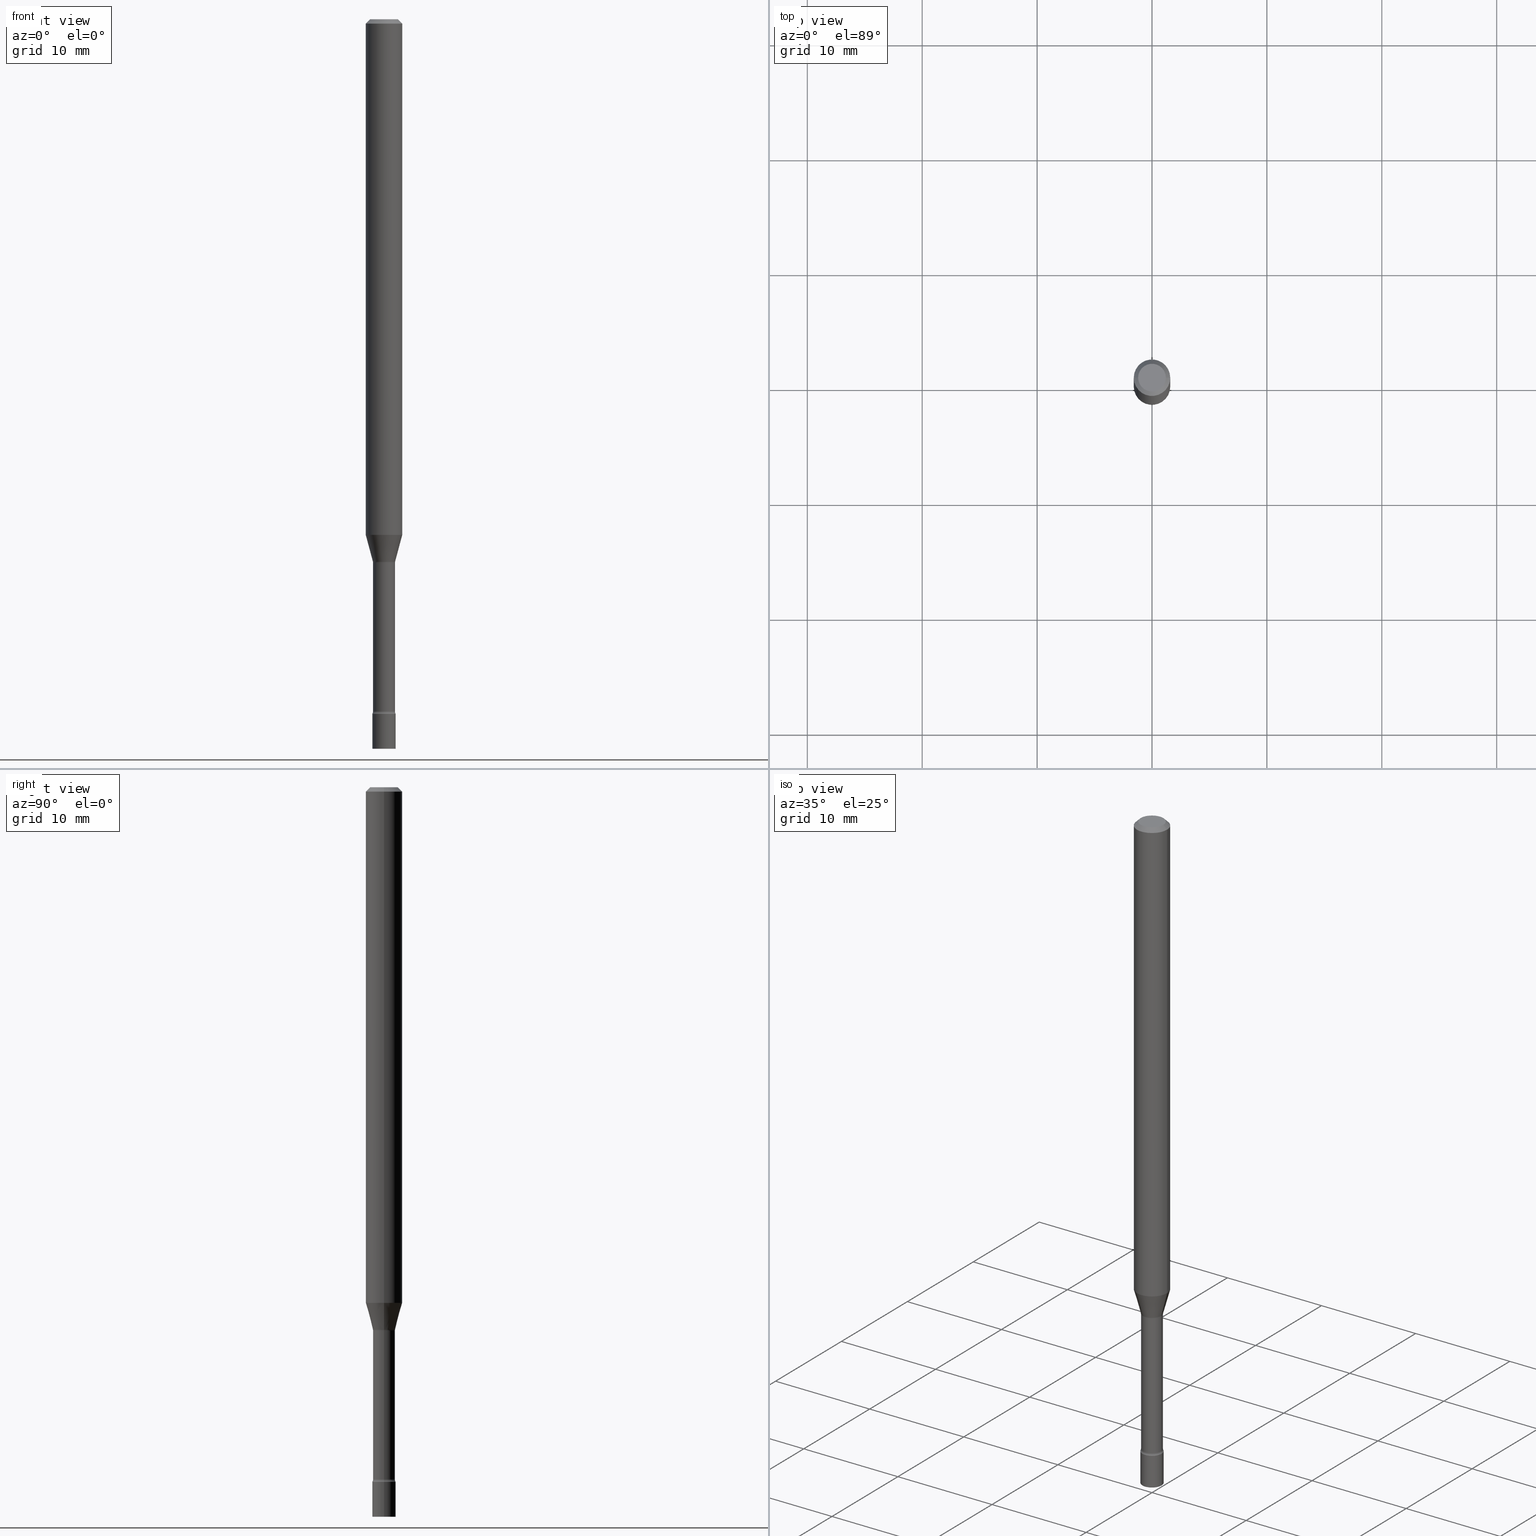
[diagram: canonical four-view strip — front | top / right | iso, engineering-drawing reading convention]
A machine part, canonical four-view strip (front | top / right | iso — engineering-drawing reading convention). The complete STEP part file that produces these views, byte-faithful:
ISO-10303-21;
HEADER;
FILE_DESCRIPTION (( 'STEP AP203' ),
    '1' );
FILE_NAME ('09727.STEP',
    '2024-03-09T01:20:05',
    ( '' ),
    ( '' ),
    'SwSTEP 2.0',
    'SolidWorks 2023',
    '' );
FILE_SCHEMA (( 'CONFIG_CONTROL_DESIGN' ));
ENDSEC;

DATA;
#1 = ADVANCED_FACE ( 'NONE', ( #38 ), #383, .F. ) ;
#2 = PERSON_AND_ORGANIZATION ( #511, #124 ) ;
#3 = EDGE_CURVE ( 'NONE', #232, #300, #247, .T. ) ;
#4 =( NAMED_UNIT ( * ) SI_UNIT ( $, .STERADIAN. ) SOLID_ANGLE_UNIT ( ) );
#5 = AXIS2_PLACEMENT_3D ( 'NONE', #398, #98, #475 ) ;
#6 = AXIS2_PLACEMENT_3D ( 'NONE', #158, #317, #481 ) ;
#7 = EDGE_LOOP ( 'NONE', ( #444, #241, #348, #139 ) ) ;
#8 = CALENDAR_DATE ( 2024, 8, 3 ) ;
#9 = CARTESIAN_POINT ( 'NONE',  ( -0.03811111260566397985, -6.216699553697740830E-15, -1.858092501787273143 ) ) ;
#10 = DIRECTION ( 'NONE',  ( 2.438088387897960049E-29, -3.491481338843145188E-15, -1.000000000000000000 ) ) ;
#11 = PRODUCT_DEFINITION ( 'UNKNOWN', '', #251, #479 ) ;
#12 = PERSON_AND_ORGANIZATION ( #511, #124 ) ;
#13 = CARTESIAN_POINT ( 'NONE',  ( 3.668203209277712094E-31, -5.237222008264728876E-17, -0.01500000000000003067 ) ) ;
#14 = AXIS2_PLACEMENT_3D ( 'NONE', #272, #166, #434 ) ;
#15 = ORIENTED_EDGE ( 'NONE', *, *, #486, .F. ) ;
#16 = APPROVAL_ROLE ( '' ) ;
#17 = CARTESIAN_POINT ( 'NONE',  ( 0.06250000000000000000, -6.606133852422636036E-15, -1.767071934891535134 ) ) ;
#18 = EDGE_LOOP ( 'NONE', ( #503, #122, #153, #513 ) ) ;
#19 = CYLINDRICAL_SURFACE ( 'NONE', #294, 0.06250000000000000000 ) ;
#20 = ORIENTED_EDGE ( 'NONE', *, *, #65, .F. ) ;
#21 = DIRECTION ( 'NONE',  ( 1.000000000000000000, -6.982962677686259611E-15, 0.000000000000000000 ) ) ;
#22 = AXIS2_PLACEMENT_3D ( 'NONE', #518, #249, #93 ) ;
#23 = AXIS2_PLACEMENT_3D ( 'NONE', #474, #389, #235 ) ;
#24 = ORIENTED_EDGE ( 'NONE', *, *, #157, .T. ) ;
#25 = CARTESIAN_POINT ( 'NONE',  ( 2.793185071075088075E-16, 0.03999999999999169498, -2.380000000000000782 ) ) ;
#26 = ORIENTED_EDGE ( 'NONE', *, *, #245, .F. ) ;
#27 = CARTESIAN_POINT ( 'NONE',  ( 3.668203209277712094E-31, -5.237222008264728876E-17, -0.01500000000000003067 ) ) ;
#28 = EDGE_CURVE ( 'NONE', #232, #151, #41, .T. ) ;
#29 = ORIENTED_EDGE ( 'NONE', *, *, #168, .F. ) ;
#30 = DIRECTION ( 'NONE',  ( 1.000000000000000000, -6.982962677686261977E-15, 0.000000000000000000 ) ) ;
#31 = ORIENTED_EDGE ( 'NONE', *, *, #28, .F. ) ;
#32 = AXIS2_PLACEMENT_3D ( 'NONE', #467, #111, #420 ) ;
#33 = CIRCLE ( 'NONE', #97, 0.06250000000000000000 ) ;
#34 = DIRECTION ( 'NONE',  ( 1.000000000000000000, -6.982962677686265922E-15, 4.876176775795935793E-29 ) ) ;
#35 = VERTEX_POINT ( 'NONE', #296 ) ;
#36 = ADVANCED_FACE ( 'NONE', ( #408 ), #311, .F. ) ;
#37 = PLANE ( 'NONE',  #492 ) ;
#38 = FACE_OUTER_BOUND ( 'NONE', #147, .T. ) ;
#39 = CARTESIAN_POINT ( 'NONE',  ( 4.543907252127276431E-29, -6.487495295834638371E-15, -1.858092501787273143 ) ) ;
#40 = VECTOR ( 'NONE', #480, 39.37007874015748143 ) ;
#41 = CIRCLE ( 'NONE', #90, 0.04000000000000000083 ) ;
#42 = LENGTH_MEASURE_WITH_UNIT ( LENGTH_MEASURE( 0.02539999999999999897 ), #212 );
#43 = MECHANICAL_CONTEXT ( 'NONE', #325, 'mechanical' ) ;
#44 = CALENDAR_DATE ( 2024, 8, 3 ) ;
#45 = DIRECTION ( 'NONE',  ( 1.000000000000000000, -6.982962677686261977E-15, 0.000000000000000000 ) ) ;
#46 = ADVANCED_BREP_SHAPE_REPRESENTATION ( '09727', ( #303, #289, #301 ), #244 ) ;
#47 = ADVANCED_FACE ( 'NONE', ( #404 ), #403, .T. ) ;
#48 = APPROVAL_ROLE ( '' ) ;
#49 = AXIS2_PLACEMENT_3D ( 'NONE', #302, #462, #270 ) ;
#50 = CIRCLE ( 'NONE', #6, 0.03760000000000011944 ) ;
#51 = CARTESIAN_POINT ( 'NONE',  ( 2.793185071075117657E-16, 0.03999999999999127864, -2.500000000000000000 ) ) ;
#52 = CC_DESIGN_PERSON_AND_ORGANIZATION_ASSIGNMENT ( #12, #225, ( #251 ) ) ;
#53 = DIRECTION ( 'NONE',  ( 1.000000000000000000, -6.982962677686265922E-15, 4.876176775795935793E-29 ) ) ;
#54 = EDGE_CURVE ( 'NONE', #468, #110, #430, .T. ) ;
#55 = ORIENTED_EDGE ( 'NONE', *, *, #94, .F. ) ;
#56 = CALENDAR_DATE ( 2024, 8, 3 ) ;
#57 = DIRECTION ( 'NONE',  ( -2.445468806185136597E-29, 3.491481338843145583E-15, 1.000000000000000000 ) ) ;
#58 = ORIENTED_EDGE ( 'NONE', *, *, #28, .T. ) ;
#59 = CLOSED_SHELL ( 'NONE', ( #1, #149, #463, #177, #318, #128, #62, #283, #221, #304, #293, #36, #326, #161 ) ) ;
#60 = CARTESIAN_POINT ( 'NONE',  ( 4.553401260645949734E-29, -6.501050223826328957E-15, -1.861974787463811065 ) ) ;
#61 = SECURITY_CLASSIFICATION ( '', '', #295 ) ;
#62 = ADVANCED_FACE ( 'NONE', ( #433 ), #439, .T. ) ;
#63 = ORIENTED_EDGE ( 'NONE', *, *, #375, .T. ) ;
#64 = CARTESIAN_POINT ( 'NONE',  ( -0.05260000000000002174, -7.907563653152925167E-15, -2.371861204020250469 ) ) ;
#65 = EDGE_CURVE ( 'NONE', #507, #103, #208, .T. ) ;
#66 = PRODUCT ( '09727', '09727', '', ( #43 ) ) ;
#67 = DIRECTION ( 'NONE',  ( -2.445468806185136597E-29, 3.491481338843145583E-15, 1.000000000000000000 ) ) ;
#68 = ORIENTED_EDGE ( 'NONE', *, *, #392, .T. ) ;
#69 = APPROVAL_DATE_TIME ( #95, #334 ) ;
#70 = PLANE ( 'NONE',  #477 ) ;
#71 = CIRCLE ( 'NONE', #137, 0.01499999999999990750 ) ;
#72 = CIRCLE ( 'NONE', #206, 0.04000000000000000083 ) ;
#73 = ORIENTED_EDGE ( 'NONE', *, *, #339, .F. ) ;
#74 = FACE_OUTER_BOUND ( 'NONE', #250, .T. ) ;
#75 = PRODUCT_RELATED_PRODUCT_CATEGORY ( 'detail', '', ( #66 ) ) ;
#76 = VERTEX_POINT ( 'NONE', #203 ) ;
#77 = DIRECTION ( 'NONE',  ( -2.438088387897960049E-29, 3.491481338843145188E-15, 1.000000000000000000 ) ) ;
#78 = ORIENTED_EDGE ( 'NONE', *, *, #263, .T. ) ;
#79 = CYLINDRICAL_SURFACE ( 'NONE', #106, 0.06250000000000000000 ) ;
#80 = ADVANCED_FACE ( 'NONE', ( #362 ), #253, .T. ) ;
#81 = ORIENTED_EDGE ( 'NONE', *, *, #3, .T. ) ;
#82 = CLOSED_SHELL ( 'NONE', ( #469, #341, #80, #47 ) ) ;
#83 = EDGE_CURVE ( 'NONE', #234, #305, #164, .T. ) ;
#84 = AXIS2_PLACEMENT_3D ( 'NONE', #125, #116, #280 ) ;
#85 = DIRECTION ( 'NONE',  ( 1.000000000000000000, -6.982962677686265922E-15, 4.876176775795935793E-29 ) ) ;
#86 = CARTESIAN_POINT ( 'NONE',  ( 4.543907252127276431E-29, -6.487495295834638371E-15, -1.858092501787273143 ) ) ;
#87 = CARTESIAN_POINT ( 'NONE',  ( 5.820215758720626311E-29, -8.309725586446688309E-15, -2.380000000000000338 ) ) ;
#88 = DIRECTION ( 'NONE',  ( 1.000000000000000000, -6.982962677686256455E-15, 4.883557194083108977E-29 ) ) ;
#89 = DIRECTION ( 'NONE',  ( 0.000000000000000000, 0.000000000000000000, 1.000000000000000000 ) ) ;
#90 = AXIS2_PLACEMENT_3D ( 'NONE', #335, #213, #201 ) ;
#91 = APPROVAL_ROLE ( '' ) ;
#92 = PERSON_AND_ORGANIZATION ( #511, #124 ) ;
#93 = DIRECTION ( 'NONE',  ( 1.000000000000000000, -6.982962677686265922E-15, 4.876176775795935793E-29 ) ) ;
#94 = EDGE_CURVE ( 'NONE', #396, #273, #323, .T. ) ;
#95 = DATE_AND_TIME ( #8, #377 ) ;
#96 = AXIS2_PLACEMENT_3D ( 'NONE', #448, #223, #493 ) ;
#97 = AXIS2_PLACEMENT_3D ( 'NONE', #27, #399, #424 ) ;
#98 = DIRECTION ( 'NONE',  ( -2.445468806185136597E-29, 3.491481338843145583E-15, 1.000000000000000000 ) ) ;
#99 = DIMENSIONAL_EXPONENTS ( 1.000000000000000000, 0.000000000000000000, 0.000000000000000000, 0.000000000000000000, 0.000000000000000000, 0.000000000000000000, 0.000000000000000000 ) ;
#100 = DATE_TIME_ROLE ( 'classification_date' ) ;
#101 = DIRECTION ( 'NONE',  ( -1.000000000000000000, 6.982962677686265922E-15, -4.876176775795935793E-29 ) ) ;
#102 = CARTESIAN_POINT ( 'NONE',  ( -0.04000000000000000083, -8.234997372473236299E-15, -2.500000000000000000 ) ) ;
#103 = VERTEX_POINT ( 'NONE', #138 ) ;
#104 = COORDINATED_UNIVERSAL_TIME_OFFSET ( 5, 0, .BEHIND. ) ;
#105 = DIRECTION ( 'NONE',  ( -2.445468806185136877E-29, 3.491481338843145188E-15, 1.000000000000000000 ) ) ;
#106 = AXIS2_PLACEMENT_3D ( 'NONE', #516, #470, #520 ) ;
#107 = DIRECTION ( 'NONE',  ( -1.000000000000000000, 7.105427357600969515E-15, 0.000000000000000000 ) ) ;
#108 = ORIENTED_EDGE ( 'NONE', *, *, #436, .T. ) ;
#109 = DIRECTION ( 'NONE',  ( 1.000000000000000000, -6.982962677686266711E-15, 4.876176775795935793E-29 ) ) ;
#110 = VERTEX_POINT ( 'NONE', #485 ) ;
#111 = DIRECTION ( 'NONE',  ( 2.445468806185136597E-29, -3.491481338843145583E-15, -1.000000000000000000 ) ) ;
#112 = CIRCLE ( 'NONE', #422, 0.06250000000000000000 ) ;
#113 = TOROIDAL_SURFACE ( 'NONE', #189, 0.05260000000000002174, 0.01499999999999990404 ) ;
#114 = AXIS2_PLACEMENT_3D ( 'NONE', #441, #489, #53 ) ;
#115 = ORIENTED_EDGE ( 'NONE', *, *, #426, .T. ) ;
#116 = DIRECTION ( 'NONE',  ( -2.445468806185136597E-29, 3.491481338843145583E-15, 1.000000000000000000 ) ) ;
#117 = ORIENTED_EDGE ( 'NONE', *, *, #245, .T. ) ;
#118 = FACE_OUTER_BOUND ( 'NONE', #505, .T. ) ;
#119 = VERTEX_POINT ( 'NONE', #410 ) ;
#120 = FACE_OUTER_BOUND ( 'NONE', #159, .T. ) ;
#121 = EDGE_CURVE ( 'NONE', #500, #234, #401, .T. ) ;
#122 = ORIENTED_EDGE ( 'NONE', *, *, #54, .T. ) ;
#123 = CIRCLE ( 'NONE', #205, 0.04749999999999999362 ) ;
#124 = ORGANIZATION ( 'UNSPECIFIED', 'UNSPECIFIED', '' ) ;
#125 = CARTESIAN_POINT ( 'NONE',  ( 0.000000000000000000, 0.000000000000000000, 0.000000000000000000 ) ) ;
#126 = DIRECTION ( 'NONE',  ( -2.445468806185136597E-29, 3.491481338843145583E-15, 1.000000000000000000 ) ) ;
#127 = CARTESIAN_POINT ( 'NONE',  ( 0.06250000000000000000, -4.364351673553916694E-16, 3.047610484872459871E-30 ) ) ;
#128 = ADVANCED_FACE ( 'NONE', ( #173 ), #498, .T. ) ;
#129 = CARTESIAN_POINT ( 'NONE',  ( 4.543907252127276431E-29, -6.487495295834638371E-15, -1.858092501787273143 ) ) ;
#130 = AXIS2_PLACEMENT_3D ( 'NONE', #163, #357, #324 ) ;
#131 =( NAMED_UNIT ( * ) PLANE_ANGLE_UNIT ( ) SI_UNIT ( $, .RADIAN. ) );
#132 = PERSON_AND_ORGANIZATION_ROLE ( 'creator' ) ;
#133 = CARTESIAN_POINT ( 'NONE',  ( 0.05260000000000000092, -6.868354060672625930E-15, -1.861974787463811065 ) ) ;
#134 = CARTESIAN_POINT ( 'NONE',  ( 0.03760000000000006393, -2.625593966810040961E-16, 1.833442467699274916E-30 ) ) ;
#135 = DIRECTION ( 'NONE',  ( 1.000000000000000000, -6.982962677686261977E-15, 0.000000000000000000 ) ) ;
#136 = APPLICATION_CONTEXT ( 'configuration controlled 3d designs of mechanical parts and assemblies' ) ;
#137 = AXIS2_PLACEMENT_3D ( 'NONE', #64, #220, #107 ) ;
#138 = CARTESIAN_POINT ( 'NONE',  ( 0.03760000000000000842, -6.763609620507332560E-15, -1.861974787463811065 ) ) ;
#139 = ORIENTED_EDGE ( 'NONE', *, *, #442, .T. ) ;
#140 = FACE_OUTER_BOUND ( 'NONE', #181, .T. ) ;
#141 = ORIENTED_EDGE ( 'NONE', *, *, #450, .T. ) ;
#142 = FACE_OUTER_BOUND ( 'NONE', #288, .T. ) ;
#143 = EDGE_LOOP ( 'NONE', ( #455, #31 ) ) ;
#144 = CIRCLE ( 'NONE', #355, 0.06250000000000000000 ) ;
#145 = DIRECTION ( 'NONE',  ( -2.445468806185136597E-29, 3.491481338843145583E-15, 1.000000000000000000 ) ) ;
#146 = AXIS2_PLACEMENT_3D ( 'NONE', #313, #395, #160 ) ;
#147 = EDGE_LOOP ( 'NONE', ( #258, #390, #219, #20 ) ) ;
#148 = DIRECTION ( 'NONE',  ( -2.445468806185136597E-29, 3.491481338843145583E-15, 1.000000000000000000 ) ) ;
#149 = ADVANCED_FACE ( 'NONE', ( #290 ), #319, .T. ) ;
#150 = CC_DESIGN_PERSON_AND_ORGANIZATION_ASSIGNMENT ( #2, #328, ( #66 ) ) ;
#151 = VERTEX_POINT ( 'NONE', #152 ) ;
#152 = CARTESIAN_POINT ( 'NONE',  ( 0.04000000000000000083, -9.008021854215314980E-15, -2.500000000000000000 ) ) ;
#153 = ORIENTED_EDGE ( 'NONE', *, *, #496, .T. ) ;
#154 = LINE ( 'NONE', #127, #365 ) ;
#155 = AXIS2_PLACEMENT_3D ( 'NONE', #129, #330, #372 ) ;
#156 = ORIENTED_EDGE ( 'NONE', *, *, #263, .F. ) ;
#157 = EDGE_CURVE ( 'NONE', #103, #446, #368, .T. ) ;
#158 = CARTESIAN_POINT ( 'NONE',  ( 5.800312587032242765E-29, -8.281309132162739301E-15, -2.371861204020250469 ) ) ;
#159 = EDGE_LOOP ( 'NONE', ( #308, #466, #393, #73 ) ) ;
#160 = DIRECTION ( 'NONE',  ( -1.000000000000000000, 6.982962677686265922E-15, -4.876176775795935793E-29 ) ) ;
#161 = ADVANCED_FACE ( 'NONE', ( #142 ), #269, .F. ) ;
#162 = CARTESIAN_POINT ( 'NONE',  ( 4.543907252127276431E-29, -6.487495295834638371E-15, -1.858092501787273143 ) ) ;
#163 = CARTESIAN_POINT ( 'NONE',  ( 5.820215758720626311E-29, -8.309725586446688309E-15, -2.380000000000000338 ) ) ;
#164 = LINE ( 'NONE', #281, #336 ) ;
#165 = AXIS2_PLACEMENT_3D ( 'NONE', #342, #381, #215 ) ;
#166 = DIRECTION ( 'NONE',  ( -6.982962677686266711E-15, -1.000000000000000000, 3.491481338843145583E-15 ) ) ;
#167 = AXIS2_PLACEMENT_3D ( 'NONE', #51, #10, #101 ) ;
#168 = EDGE_CURVE ( 'NONE', #234, #500, #123, .T. ) ;
#169 = DATE_AND_TIME ( #44, #499 ) ;
#170 = APPROVAL ( #501, 'UNSPECIFIED' ) ;
#171 = DIRECTION ( 'NONE',  ( -2.445468806185136597E-29, 3.491481338843145583E-15, 1.000000000000000000 ) ) ;
#172 = COORDINATED_UNIVERSAL_TIME_OFFSET ( 5, 0, .BEHIND. ) ;
#173 = FACE_OUTER_BOUND ( 'NONE', #190, .T. ) ;
#174 = ORIENTED_EDGE ( 'NONE', *, *, #194, .F. ) ;
#175 = CYLINDRICAL_SURFACE ( 'NONE', #114, 0.04000000000000000083 ) ;
#176 = DIRECTION ( 'NONE',  ( 0.7071067811865475727, -7.319954787623256045E-15, -0.7071067811865474617 ) ) ;
#177 = ADVANCED_FACE ( 'NONE', ( #140 ), #345, .T. ) ;
#178 = CIRCLE ( 'NONE', #292, 0.04000000000000000083 ) ;
#179 = VECTOR ( 'NONE', #315, 39.37007874015748143 ) ;
#180 = CARTESIAN_POINT ( 'NONE',  ( 3.668203209277712094E-31, -5.237222008264728876E-17, -0.01500000000000003067 ) ) ;
#181 = EDGE_LOOP ( 'NONE', ( #29, #354, #414, #238 ) ) ;
#182 = APPROVAL ( #286, 'UNSPECIFIED' ) ;
#183 = SHAPE_DEFINITION_REPRESENTATION ( #458, #46 ) ;
#184 = LINE ( 'NONE', #495, #187 ) ;
#185 = DIRECTION ( 'NONE',  ( 1.000000000000000000, -6.982962677686266711E-15, 0.000000000000000000 ) ) ;
#186 = EDGE_CURVE ( 'NONE', #305, #119, #112, .T. ) ;
#187 = VECTOR ( 'NONE', #105, 39.37007874015748143 ) ;
#188 = DIRECTION ( 'NONE',  ( -2.445468806185136597E-29, 3.491481338843145583E-15, 1.000000000000000000 ) ) ;
#189 = AXIS2_PLACEMENT_3D ( 'NONE', #432, #400, #447 ) ;
#190 = EDGE_LOOP ( 'NONE', ( #352, #460, #427, #26 ) ) ;
#191 = DIRECTION ( 'NONE',  ( 1.000000000000000000, -6.982962677686261977E-15, 4.883557194083110659E-29 ) ) ;
#192 = VERTEX_POINT ( 'NONE', #17 ) ;
#193 = CARTESIAN_POINT ( 'NONE',  ( -0.03760000000000000842, -7.124015609348737090E-15, -1.861974787463811065 ) ) ;
#194 = EDGE_CURVE ( 'NONE', #35, #340, #178, .T. ) ;
#195 = ORIENTED_EDGE ( 'NONE', *, *, #186, .F. ) ;
#196 = CARTESIAN_POINT ( 'NONE',  ( -0.03811111260566397985, -5.971154514457461685E-15, -1.858092501787273143 ) ) ;
#197 = AXIS2_PLACEMENT_3D ( 'NONE', #506, #361, #233 ) ;
#198 = ORIENTED_EDGE ( 'NONE', *, *, #445, .T. ) ;
#199 = EDGE_CURVE ( 'NONE', #446, #103, #236, .T. ) ;
#200 = CARTESIAN_POINT ( 'NONE',  ( 0.06250000000000000000, -4.888073874380389458E-16, -0.01500000000000003067 ) ) ;
#201 = DIRECTION ( 'NONE',  ( 1.000000000000000000, -6.982962677686259611E-15, 0.000000000000000000 ) ) ;
#202 = CARTESIAN_POINT ( 'NONE',  ( 0.03999999999999993144, -8.589044093554136769E-15, -2.380000000000000338 ) ) ;
#203 = CARTESIAN_POINT ( 'NONE',  ( 0.04000000000000000083, -8.589044093554138346E-15, -2.380000000000000338 ) ) ;
#204 = LINE ( 'NONE', #353, #179 ) ;
#205 = AXIS2_PLACEMENT_3D ( 'NONE', #218, #379, #349 ) ;
#206 = AXIS2_PLACEMENT_3D ( 'NONE', #274, #391, #242 ) ;
#207 = CARTESIAN_POINT ( 'NONE',  ( -0.04000000000000000083, 2.842170943040400803E-16, -1.967574036101962509E-30 ) ) ;
#208 = CIRCLE ( 'NONE', #321, 0.01500000000000001853 ) ;
#209 = AXIS2_PLACEMENT_3D ( 'NONE', #514, #363, #428 ) ;
#210 = PERSON_AND_ORGANIZATION ( #511, #124 ) ;
#211 = DIRECTION ( 'NONE',  ( 1.000000000000000000, -6.982962677686259611E-15, 0.000000000000000000 ) ) ;
#212 =( LENGTH_UNIT ( ) NAMED_UNIT ( * ) SI_UNIT ( $, .METRE. ) );
#213 = DIRECTION ( 'NONE',  ( -2.445468806185136597E-29, 3.491481338843145583E-15, 1.000000000000000000 ) ) ;
#214 = COORDINATED_UNIVERSAL_TIME_OFFSET ( 5, 0, .BEHIND. ) ;
#215 = DIRECTION ( 'NONE',  ( 1.000000000000000000, -6.982962677686259611E-15, 0.000000000000000000 ) ) ;
#216 = EDGE_CURVE ( 'NONE', #192, #273, #144, .T. ) ;
#217 = APPROVAL_PERSON_ORGANIZATION ( #482, #182, #91 ) ;
#218 = CARTESIAN_POINT ( 'NONE',  ( 7.070806723891919892E-46, -1.009523804376275404E-31, -2.891391092786900929E-17 ) ) ;
#219 = ORIENTED_EDGE ( 'NONE', *, *, #199, .T. ) ;
#220 = DIRECTION ( 'NONE',  ( 7.105427357601001859E-15, 1.000000000000000000, -3.491481338843145583E-15 ) ) ;
#221 = ADVANCED_FACE ( 'NONE', ( #504 ), #259, .T. ) ;
#222 = CC_DESIGN_DATE_AND_TIME_ASSIGNMENT ( #451, #100, ( #61 ) ) ;
#223 = DIRECTION ( 'NONE',  ( -2.445468806185136597E-29, 3.491481338843145583E-15, 1.000000000000000000 ) ) ;
#224 = ORIENTED_EDGE ( 'NONE', *, *, #442, .F. ) ;
#225 = PERSON_AND_ORGANIZATION_ROLE ( 'creator' ) ;
#226 = AXIS2_PLACEMENT_3D ( 'NONE', #86, #171, #45 ) ;
#227 = DIRECTION ( 'NONE',  ( 2.445468806185136597E-29, -3.491481338843145583E-15, -1.000000000000000000 ) ) ;
#228 = LOCAL_TIME ( 20, 20, 5.000000000000000000, #104 ) ;
#229 = ORIENTED_EDGE ( 'NONE', *, *, #3, .F. ) ;
#230 = FACE_OUTER_BOUND ( 'NONE', #18, .T. ) ;
#231 = EDGE_CURVE ( 'NONE', #396, #446, #277, .T. ) ;
#232 = VERTEX_POINT ( 'NONE', #102 ) ;
#233 = DIRECTION ( 'NONE',  ( 1.000000000000000000, -6.982962677686259611E-15, 0.000000000000000000 ) ) ;
#234 = VERTEX_POINT ( 'NONE', #257 ) ;
#235 = DIRECTION ( 'NONE',  ( 1.000000000000000000, -6.982962677686259611E-15, 0.000000000000000000 ) ) ;
#236 = CIRCLE ( 'NONE', #364, 0.03760000000000000842 ) ;
#237 = CIRCLE ( 'NONE', #197, 0.04000000000000000083 ) ;
#238 = ORIENTED_EDGE ( 'NONE', *, *, #450, .F. ) ;
#239 = EDGE_CURVE ( 'NONE', #468, #446, #347, .T. ) ;
#240 = PLANE ( 'NONE',  #146 ) ;
#241 = ORIENTED_EDGE ( 'NONE', *, *, #426, .F. ) ;
#242 = DIRECTION ( 'NONE',  ( 1.000000000000000000, -6.982962677686259611E-15, 0.000000000000000000 ) ) ;
#243 = DIRECTION ( 'NONE',  ( -2.445468806185136877E-29, 3.491481338843145188E-15, 1.000000000000000000 ) ) ;
#244 =( GEOMETRIC_REPRESENTATION_CONTEXT ( 3 ) GLOBAL_UNCERTAINTY_ASSIGNED_CONTEXT ( ( #343 ) ) GLOBAL_UNIT_ASSIGNED_CONTEXT ( ( #366, #131, #4 ) ) REPRESENTATION_CONTEXT ( 'NONE', 'WORKASPACE' ) );
#245 = EDGE_CURVE ( 'NONE', #507, #192, #299, .T. ) ;
#246 = LINE ( 'NONE', #134, #402 ) ;
#247 = LINE ( 'NONE', #207, #483 ) ;
#248 = APPROVAL_STATUS ( 'not_yet_approved' ) ;
#249 = DIRECTION ( 'NONE',  ( -2.445468806185136597E-29, 3.491481338843145583E-15, 1.000000000000000000 ) ) ;
#250 = EDGE_LOOP ( 'NONE', ( #254, #68 ) ) ;
#251 = PRODUCT_DEFINITION_FORMATION_WITH_SPECIFIED_SOURCE ( 'ANY', '', #66, .NOT_KNOWN. ) ;
#252 = APPLICATION_PROTOCOL_DEFINITION ( 'international standard', 'config_control_design', 1994, #136 ) ;
#253 = CYLINDRICAL_SURFACE ( 'NONE', #22, 0.04000000000000000083 ) ;
#254 = ORIENTED_EDGE ( 'NONE', *, *, #350, .T. ) ;
#255 = CARTESIAN_POINT ( 'NONE',  ( 5.800312587032242765E-29, -8.281309132162739301E-15, -2.371861204020250469 ) ) ;
#256 = ORIENTED_EDGE ( 'NONE', *, *, #268, .F. ) ;
#257 = CARTESIAN_POINT ( 'NONE',  ( 0.04749999999999999362, -4.035134999187579609E-16, -2.891391092786643933E-17 ) ) ;
#258 = ORIENTED_EDGE ( 'NONE', *, *, #386, .F. ) ;
#259 = CONICAL_SURFACE ( 'NONE', #32, 0.06250000000000000000, 0.7853981633974483900 ) ;
#260 = DATE_AND_TIME ( #453, #413 ) ;
#261 = CIRCLE ( 'NONE', #209, 0.06250000000000000000 ) ;
#262 = CARTESIAN_POINT ( 'NONE',  ( 0.04000000000000000083, -2.793185071074506290E-16, 1.950470710318374387E-30 ) ) ;
#263 = EDGE_CURVE ( 'NONE', #273, #119, #184, .T. ) ;
#264 = CARTESIAN_POINT ( 'NONE',  ( 4.321319295062462041E-29, -6.169698685067244367E-15, -1.767071934891535134 ) ) ;
#265 = ORIENTED_EDGE ( 'NONE', *, *, #168, .T. ) ;
#266 = FACE_OUTER_BOUND ( 'NONE', #464, .T. ) ;
#267 = ORIENTED_EDGE ( 'NONE', *, *, #216, .T. ) ;
#268 = EDGE_CURVE ( 'NONE', #151, #76, #465, .T. ) ;
#269 = TOROIDAL_SURFACE ( 'NONE', #329, 0.05260000000000000092, 0.01500000000000002373 ) ;
#270 = DIRECTION ( 'NONE',  ( -1.000000000000000000, 7.105427357600982137E-15, 0.000000000000000000 ) ) ;
#271 = ORIENTED_EDGE ( 'NONE', *, *, #369, .T. ) ;
#272 = CARTESIAN_POINT ( 'NONE',  ( 0.05260000000000002174, -8.648612969009036274E-15, -2.371861204020250469 ) ) ;
#273 = VERTEX_POINT ( 'NONE', #497 ) ;
#274 = CARTESIAN_POINT ( 'NONE',  ( 6.113672015462842613E-29, -8.728703347107864943E-15, -2.500000000000000000 ) ) ;
#275 = ORIENTED_EDGE ( 'NONE', *, *, #121, .T. ) ;
#276 = CARTESIAN_POINT ( 'NONE',  ( -0.03760000000000011944, -8.019826777829792953E-15, -2.371861204020250469 ) ) ;
#277 = CIRCLE ( 'NONE', #49, 0.01500000000000001853 ) ;
#278 = EDGE_CURVE ( 'NONE', #468, #35, #71, .T. ) ;
#279 = ORIENTED_EDGE ( 'NONE', *, *, #392, .F. ) ;
#280 = DIRECTION ( 'NONE',  ( 1.000000000000000000, -6.982962677686267499E-15, 4.876176775795935793E-29 ) ) ;
#281 = CARTESIAN_POINT ( 'NONE',  ( 0.06250000000000000000, -4.811533449433680977E-16, -0.01500000000000003067 ) ) ;
#282 = APPLICATION_PROTOCOL_DEFINITION ( 'international standard', 'config_control_design', 1994, #325 ) ;
#283 = ADVANCED_FACE ( 'NONE', ( #380 ), #19, .T. ) ;
#284 = CARTESIAN_POINT ( 'NONE',  ( 0.03811111260566397985, -6.753623772765088021E-15, -1.858092501787273143 ) ) ;
#285 = CIRCLE ( 'NONE', #23, 0.04000000000000000083 ) ;
#286 = APPROVAL_STATUS ( 'not_yet_approved' ) ;
#287 = CALENDAR_DATE ( 2024, 8, 3 ) ;
#288 = EDGE_LOOP ( 'NONE', ( #473, #15, #494, #24 ) ) ;
#289 = MANIFOLD_SOLID_BREP ( 'Body-Move/Copy2[2]', #59 ) ;
#290 = FACE_OUTER_BOUND ( 'NONE', #418, .T. ) ;
#291 = CC_DESIGN_PERSON_AND_ORGANIZATION_ASSIGNMENT ( #306, #461, ( #61 ) ) ;
#292 = AXIS2_PLACEMENT_3D ( 'NONE', #307, #57, #309 ) ;
#293 = ADVANCED_FACE ( 'NONE', ( #266 ), #70, .F. ) ;
#294 = AXIS2_PLACEMENT_3D ( 'NONE', #417, #67, #109 ) ;
#295 = SECURITY_CLASSIFICATION_LEVEL ( 'unclassified' ) ;
#296 = CARTESIAN_POINT ( 'NONE',  ( -0.03999999999999993144, -8.025508492142647982E-15, -2.380000000000000338 ) ) ;
#297 = ORIENTED_EDGE ( 'NONE', *, *, #375, .F. ) ;
#298 = DIRECTION ( 'NONE',  ( -1.000000000000000000, 6.982962677686266711E-15, 0.000000000000000000 ) ) ;
#299 = LINE ( 'NONE', #387, #491 ) ;
#300 = VERTEX_POINT ( 'NONE', #397 ) ;
#301 = AXIS2_PLACEMENT_3D ( 'NONE', #437, #89, #327 ) ;
#302 = CARTESIAN_POINT ( 'NONE',  ( -0.05260000000000000092, -6.127304744816516401E-15, -1.861974787463811065 ) ) ;
#303 = MANIFOLD_SOLID_BREP ( 'Body-Move/Copy2[1]', #82 ) ;
#304 = ADVANCED_FACE ( 'NONE', ( #118 ), #240, .F. ) ;
#305 = VERTEX_POINT ( 'NONE', #200 ) ;
#306 = PERSON_AND_ORGANIZATION ( #511, #124 ) ;
#307 = CARTESIAN_POINT ( 'NONE',  ( 5.820215758720626311E-29, -8.309725586446688309E-15, -2.380000000000000338 ) ) ;
#308 = ORIENTED_EDGE ( 'NONE', *, *, #54, .F. ) ;
#309 = DIRECTION ( 'NONE',  ( 1.000000000000000000, -6.982962677686259611E-15, 0.000000000000000000 ) ) ;
#310 = ORIENTED_EDGE ( 'NONE', *, *, #386, .T. ) ;
#311 = TOROIDAL_SURFACE ( 'NONE', #376, 0.05260000000000002174, 0.01499999999999990404 ) ;
#312 = APPROVAL_PERSON_ORGANIZATION ( #92, #334, #48 ) ;
#313 = CARTESIAN_POINT ( 'NONE',  ( 3.316907271900976096E-16, 0.04749999999999999362, -1.803023190589839165E-16 ) ) ;
#314 = ORIENTED_EDGE ( 'NONE', *, *, #436, .F. ) ;
#315 = DIRECTION ( 'NONE',  ( -0.7071067811865475727, 2.468850131082257455E-15, -0.7071067811865474617 ) ) ;
#316 = ORIENTED_EDGE ( 'NONE', *, *, #121, .F. ) ;
#317 = DIRECTION ( 'NONE',  ( -2.445468806185136597E-29, 3.491481338843145583E-15, 1.000000000000000000 ) ) ;
#318 = ADVANCED_FACE ( 'NONE', ( #320 ), #79, .T. ) ;
#319 = CYLINDRICAL_SURFACE ( 'NONE', #96, 0.03760000000000006393 ) ;
#320 = FACE_OUTER_BOUND ( 'NONE', #358, .T. ) ;
#321 = AXIS2_PLACEMENT_3D ( 'NONE', #133, #331, #211 ) ;
#322 = CC_DESIGN_APPROVAL ( #334, ( #251 ) ) ;
#323 = LINE ( 'NONE', #9, #40 ) ;
#324 = DIRECTION ( 'NONE',  ( 1.000000000000000000, -6.982962677686259611E-15, 0.000000000000000000 ) ) ;
#325 = APPLICATION_CONTEXT ( 'configuration controlled 3d designs of mechanical parts and assemblies' ) ;
#326 = ADVANCED_FACE ( 'NONE', ( #230 ), #478, .T. ) ;
#327 = DIRECTION ( 'NONE',  ( 1.000000000000000000, 0.000000000000000000, 0.000000000000000000 ) ) ;
#328 = PERSON_AND_ORGANIZATION_ROLE ( 'design_owner' ) ;
#329 = AXIS2_PLACEMENT_3D ( 'NONE', #60, #374, #191 ) ;
#330 = DIRECTION ( 'NONE',  ( -2.445468806185136597E-29, 3.491481338843145583E-15, 1.000000000000000000 ) ) ;
#331 = DIRECTION ( 'NONE',  ( -6.982962677686266711E-15, -1.000000000000000000, 3.491481338843145583E-15 ) ) ;
#332 = DATE_AND_TIME ( #287, #431 ) ;
#333 = DIRECTION ( 'NONE',  ( -2.445468806185136877E-29, 3.491481338843145188E-15, 1.000000000000000000 ) ) ;
#334 = APPROVAL ( #248, 'UNSPECIFIED' ) ;
#335 = CARTESIAN_POINT ( 'NONE',  ( 6.113672015462842613E-29, -8.728703347107864943E-15, -2.500000000000000000 ) ) ;
#336 = VECTOR ( 'NONE', #176, 39.37007874015748143 ) ;
#337 = CIRCLE ( 'NONE', #155, 0.03811111260566397985 ) ;
#338 = DIRECTION ( 'NONE',  ( 1.000000000000000000, -6.982962677686262766E-15, 0.000000000000000000 ) ) ;
#339 = EDGE_CURVE ( 'NONE', #110, #340, #356, .T. ) ;
#340 = VERTEX_POINT ( 'NONE', #202 ) ;
#341 = ADVANCED_FACE ( 'NONE', ( #74 ), #37, .T. ) ;
#342 = CARTESIAN_POINT ( 'NONE',  ( 4.553401260645949734E-29, -6.501050223826328957E-15, -1.861974787463811065 ) ) ;
#343 = UNCERTAINTY_MEASURE_WITH_UNIT (LENGTH_MEASURE( 1.000000000000000082E-05 ), #366, 'distance_accuracy_value', 'NONE');
#344 = EDGE_LOOP ( 'NONE', ( #156, #63, #108, #435 ) ) ;
#345 = CONICAL_SURFACE ( 'NONE', #519, 0.06250000000000000000, 0.7853981633974483900 ) ;
#346 = PERSON_AND_ORGANIZATION_ROLE ( 'design_supplier' ) ;
#347 = LINE ( 'NONE', #456, #405 ) ;
#348 = ORIENTED_EDGE ( 'NONE', *, *, #339, .T. ) ;
#349 = DIRECTION ( 'NONE',  ( 1.000000000000000000, -6.982962677686267499E-15, 4.876681293081646444E-29 ) ) ;
#350 = EDGE_CURVE ( 'NONE', #76, #300, #237, .T. ) ;
#351 = CC_DESIGN_DATE_AND_TIME_ASSIGNMENT ( #332, #487, ( #11 ) ) ;
#352 = ORIENTED_EDGE ( 'NONE', *, *, #486, .T. ) ;
#353 = CARTESIAN_POINT ( 'NONE',  ( -0.06250000000000000000, 3.840629472727443437E-16, -0.01500000000000003067 ) ) ;
#354 = ORIENTED_EDGE ( 'NONE', *, *, #83, .T. ) ;
#355 = AXIS2_PLACEMENT_3D ( 'NONE', #264, #188, #338 ) ;
#356 = CIRCLE ( 'NONE', #14, 0.01499999999999990750 ) ;
#357 = DIRECTION ( 'NONE',  ( -2.445468806185136597E-29, 3.491481338843145583E-15, 1.000000000000000000 ) ) ;
#358 = EDGE_LOOP ( 'NONE', ( #267, #78, #195, #314 ) ) ;
#359 = DIRECTION ( 'NONE',  ( -2.438088387897960049E-29, 3.491481338843145188E-15, 1.000000000000000000 ) ) ;
#360 = CARTESIAN_POINT ( 'NONE',  ( 7.070806723891919892E-46, -1.009523804376275404E-31, -2.891391092786900929E-17 ) ) ;
#361 = DIRECTION ( 'NONE',  ( -2.445468806185136597E-29, 3.491481338843145583E-15, 1.000000000000000000 ) ) ;
#362 = FACE_OUTER_BOUND ( 'NONE', #388, .T. ) ;
#363 = DIRECTION ( 'NONE',  ( -2.445468806185136597E-29, 3.491481338843145583E-15, 1.000000000000000000 ) ) ;
#364 = AXIS2_PLACEMENT_3D ( 'NONE', #454, #145, #21 ) ;
#365 = VECTOR ( 'NONE', #472, 39.37007874015748143 ) ;
#366 =( CONVERSION_BASED_UNIT ( 'INCH', #42 ) LENGTH_UNIT ( ) NAMED_UNIT ( #99 ) );
#367 = ORIENTED_EDGE ( 'NONE', *, *, #496, .F. ) ;
#368 = CIRCLE ( 'NONE', #165, 0.03760000000000000842 ) ;
#369 = EDGE_CURVE ( 'NONE', #151, #232, #72, .T. ) ;
#370 = COORDINATED_UNIVERSAL_TIME_OFFSET ( 5, 0, .BEHIND. ) ;
#371 = DIRECTION ( 'NONE',  ( 1.000000000000000000, -6.982962677686267499E-15, 4.876681293081646444E-29 ) ) ;
#372 = DIRECTION ( 'NONE',  ( 1.000000000000000000, -6.982962677686261977E-15, 0.000000000000000000 ) ) ;
#373 = DIRECTION ( 'NONE',  ( -2.445468806185136597E-29, 3.491481338843145583E-15, 1.000000000000000000 ) ) ;
#374 = DIRECTION ( 'NONE',  ( -2.445468806185136597E-29, 3.491481338843145583E-15, 1.000000000000000000 ) ) ;
#375 = EDGE_CURVE ( 'NONE', #273, #192, #261, .T. ) ;
#376 = AXIS2_PLACEMENT_3D ( 'NONE', #452, #373, #88 ) ;
#377 = LOCAL_TIME ( 20, 20, 5.000000000000000000, #370 ) ;
#378 = ORIENTED_EDGE ( 'NONE', *, *, #83, .F. ) ;
#379 = DIRECTION ( 'NONE',  ( -2.445468806185136597E-29, 3.491481338843145583E-15, 1.000000000000000000 ) ) ;
#380 = FACE_OUTER_BOUND ( 'NONE', #344, .T. ) ;
#381 = DIRECTION ( 'NONE',  ( -2.445468806185136597E-29, 3.491481338843145583E-15, 1.000000000000000000 ) ) ;
#382 = ORIENTED_EDGE ( 'NONE', *, *, #350, .F. ) ;
#383 = TOROIDAL_SURFACE ( 'NONE', #5, 0.05260000000000000092, 0.01500000000000002373 ) ;
#384 = PERSON_AND_ORGANIZATION ( #511, #124 ) ;
#385 = AXIS2_PLACEMENT_3D ( 'NONE', #39, #512, #30 ) ;
#386 = EDGE_CURVE ( 'NONE', #396, #507, #509, .T. ) ;
#387 = CARTESIAN_POINT ( 'NONE',  ( 0.03811111260566397985, -6.753623772765088021E-15, -1.858092501787273143 ) ) ;
#388 = EDGE_LOOP ( 'NONE', ( #229, #58, #429, #279 ) ) ;
#389 = DIRECTION ( 'NONE',  ( -2.445468806185136597E-29, 3.491481338843145583E-15, 1.000000000000000000 ) ) ;
#390 = ORIENTED_EDGE ( 'NONE', *, *, #231, .T. ) ;
#391 = DIRECTION ( 'NONE',  ( -2.445468806185136597E-29, 3.491481338843145583E-15, 1.000000000000000000 ) ) ;
#392 = EDGE_CURVE ( 'NONE', #300, #76, #440, .T. ) ;
#393 = ORIENTED_EDGE ( 'NONE', *, *, #194, .T. ) ;
#394 = APPROVAL_PERSON_ORGANIZATION ( #384, #170, #16 ) ;
#395 = DIRECTION ( 'NONE',  ( 2.438088387897960049E-29, -3.491481338843145188E-15, -1.000000000000000000 ) ) ;
#396 = VERTEX_POINT ( 'NONE', #196 ) ;
#397 = CARTESIAN_POINT ( 'NONE',  ( -0.04000000000000000083, -8.234997372473236299E-15, -2.380000000000000338 ) ) ;
#398 = CARTESIAN_POINT ( 'NONE',  ( 4.553401260645949734E-29, -6.501050223826328957E-15, -1.861974787463811065 ) ) ;
#399 = DIRECTION ( 'NONE',  ( -2.445468806185136597E-29, 3.491481338843145583E-15, 1.000000000000000000 ) ) ;
#400 = DIRECTION ( 'NONE',  ( -2.445468806185136597E-29, 3.491481338843145583E-15, 1.000000000000000000 ) ) ;
#401 = CIRCLE ( 'NONE', #449, 0.04749999999999999362 ) ;
#402 = VECTOR ( 'NONE', #243, 39.37007874015748143 ) ;
#403 = PLANE ( 'NONE',  #167 ) ;
#404 = FACE_OUTER_BOUND ( 'NONE', #143, .T. ) ;
#405 = VECTOR ( 'NONE', #502, 39.37007874015748143 ) ;
#406 = CC_DESIGN_SECURITY_CLASSIFICATION ( #61, ( #251 ) ) ;
#407 = FACE_OUTER_BOUND ( 'NONE', #409, .T. ) ;
#408 = FACE_OUTER_BOUND ( 'NONE', #7, .T. ) ;
#409 = EDGE_LOOP ( 'NONE', ( #271, #81, #382, #256 ) ) ;
#410 = CARTESIAN_POINT ( 'NONE',  ( -0.06250000000000000000, -2.666946242724883698E-15, -0.01500000000000003067 ) ) ;
#411 = ORIENTED_EDGE ( 'NONE', *, *, #157, .F. ) ;
#412 = DIRECTION ( 'NONE',  ( 0.2588190451025209060, 1.565188264969625123E-15, 0.9659258262890682012 ) ) ;
#413 = LOCAL_TIME ( 20, 20, 5.000000000000000000, #214 ) ;
#414 = ORIENTED_EDGE ( 'NONE', *, *, #186, .T. ) ;
#415 = PERSON_AND_ORGANIZATION ( #511, #124 ) ;
#416 = DIRECTION ( 'NONE',  ( -2.445468806185136877E-29, 3.491481338843145188E-15, 1.000000000000000000 ) ) ;
#417 = CARTESIAN_POINT ( 'NONE',  ( 0.000000000000000000, 0.000000000000000000, 0.000000000000000000 ) ) ;
#418 = EDGE_LOOP ( 'NONE', ( #115, #471, #411, #367 ) ) ;
#419 = APPROVAL_DATE_TIME ( #260, #170 ) ;
#420 = DIRECTION ( 'NONE',  ( -1.000000000000000000, 6.982962677686266711E-15, 0.000000000000000000 ) ) ;
#421 = EDGE_LOOP ( 'NONE', ( #378, #316, #141, #198 ) ) ;
#422 = AXIS2_PLACEMENT_3D ( 'NONE', #180, #148, #185 ) ;
#423 = CC_DESIGN_APPROVAL ( #182, ( #11 ) ) ;
#424 = DIRECTION ( 'NONE',  ( 1.000000000000000000, -6.982962677686266711E-15, 0.000000000000000000 ) ) ;
#425 = EDGE_LOOP ( 'NONE', ( #55, #310, #117, #297 ) ) ;
#426 = EDGE_CURVE ( 'NONE', #110, #468, #50, .T. ) ;
#427 = ORIENTED_EDGE ( 'NONE', *, *, #216, .F. ) ;
#428 = DIRECTION ( 'NONE',  ( 1.000000000000000000, -6.982962677686262766E-15, 0.000000000000000000 ) ) ;
#429 = ORIENTED_EDGE ( 'NONE', *, *, #268, .T. ) ;
#430 = CIRCLE ( 'NONE', #508, 0.03760000000000011944 ) ;
#431 = LOCAL_TIME ( 20, 20, 5.000000000000000000, #443 ) ;
#432 = CARTESIAN_POINT ( 'NONE',  ( 5.800312587032242765E-29, -8.281309132162739301E-15, -2.371861204020250469 ) ) ;
#433 = FACE_OUTER_BOUND ( 'NONE', #425, .T. ) ;
#434 = DIRECTION ( 'NONE',  ( 1.000000000000000000, -6.982962677686246200E-15, 0.000000000000000000 ) ) ;
#435 = ORIENTED_EDGE ( 'NONE', *, *, #445, .F. ) ;
#436 = EDGE_CURVE ( 'NONE', #192, #305, #154, .T. ) ;
#437 = CARTESIAN_POINT ( 'NONE',  ( 0.000000000000000000, 0.000000000000000000, 0.000000000000000000 ) ) ;
#438 = CARTESIAN_POINT ( 'NONE',  ( -0.04749999999999999362, 3.578768372314209027E-16, -2.891391092787141902E-17 ) ) ;
#439 = CONICAL_SURFACE ( 'NONE', #226, 0.03811111260566397985, 0.2617993877991495744 ) ;
#440 = CIRCLE ( 'NONE', #130, 0.04000000000000000083 ) ;
#441 = CARTESIAN_POINT ( 'NONE',  ( 0.000000000000000000, 0.000000000000000000, 0.000000000000000000 ) ) ;
#442 = EDGE_CURVE ( 'NONE', #340, #35, #285, .T. ) ;
#443 = COORDINATED_UNIVERSAL_TIME_OFFSET ( 5, 0, .BEHIND. ) ;
#444 = ORIENTED_EDGE ( 'NONE', *, *, #278, .F. ) ;
#445 = EDGE_CURVE ( 'NONE', #119, #305, #33, .T. ) ;
#446 = VERTEX_POINT ( 'NONE', #193 ) ;
#447 = DIRECTION ( 'NONE',  ( 1.000000000000000000, -6.982962677686256455E-15, 4.883557194083108977E-29 ) ) ;
#448 = CARTESIAN_POINT ( 'NONE',  ( 0.000000000000000000, 0.000000000000000000, 0.000000000000000000 ) ) ;
#449 = AXIS2_PLACEMENT_3D ( 'NONE', #360, #126, #371 ) ;
#450 = EDGE_CURVE ( 'NONE', #500, #119, #204, .T. ) ;
#451 = DATE_AND_TIME ( #56, #228 ) ;
#452 = CARTESIAN_POINT ( 'NONE',  ( 5.800312587032242765E-29, -8.281309132162739301E-15, -2.371861204020250469 ) ) ;
#453 = CALENDAR_DATE ( 2024, 8, 3 ) ;
#454 = CARTESIAN_POINT ( 'NONE',  ( 4.553401260645949734E-29, -6.501050223826328957E-15, -1.861974787463811065 ) ) ;
#455 = ORIENTED_EDGE ( 'NONE', *, *, #369, .F. ) ;
#456 = CARTESIAN_POINT ( 'NONE',  ( -0.03760000000000006393, 2.671640686457981241E-16, -1.849519593935847729E-30 ) ) ;
#457 = AXIS2_PLACEMENT_3D ( 'NONE', #162, #488, #135 ) ;
#458 = PRODUCT_DEFINITION_SHAPE ( 'NONE', 'NONE',  #11 ) ;
#459 = CC_DESIGN_APPROVAL ( #170, ( #61 ) ) ;
#460 = ORIENTED_EDGE ( 'NONE', *, *, #94, .T. ) ;
#461 = PERSON_AND_ORGANIZATION_ROLE ( 'classification_officer' ) ;
#462 = DIRECTION ( 'NONE',  ( 7.105427357601001859E-15, 1.000000000000000000, -3.491481338843145583E-15 ) ) ;
#463 = ADVANCED_FACE ( 'NONE', ( #120 ), #113, .F. ) ;
#464 = EDGE_LOOP ( 'NONE', ( #224, #174 ) ) ;
#465 = LINE ( 'NONE', #262, #476 ) ;
#466 = ORIENTED_EDGE ( 'NONE', *, *, #278, .T. ) ;
#467 = CARTESIAN_POINT ( 'NONE',  ( 3.668203209277712094E-31, -5.237222008264728876E-17, -0.01500000000000003067 ) ) ;
#468 = VERTEX_POINT ( 'NONE', #276 ) ;
#469 = ADVANCED_FACE ( 'NONE', ( #407 ), #175, .T. ) ;
#470 = DIRECTION ( 'NONE',  ( -2.445468806185136597E-29, 3.491481338843145583E-15, 1.000000000000000000 ) ) ;
#471 = ORIENTED_EDGE ( 'NONE', *, *, #239, .T. ) ;
#472 = DIRECTION ( 'NONE',  ( -2.445468806185136877E-29, 3.491481338843145188E-15, 1.000000000000000000 ) ) ;
#473 = ORIENTED_EDGE ( 'NONE', *, *, #231, .F. ) ;
#474 = CARTESIAN_POINT ( 'NONE',  ( 5.820215758720626311E-29, -8.309725586446688309E-15, -2.380000000000000338 ) ) ;
#475 = DIRECTION ( 'NONE',  ( 1.000000000000000000, -6.982962677686261977E-15, 4.883557194083110659E-29 ) ) ;
#476 = VECTOR ( 'NONE', #416, 39.37007874015748143 ) ;
#477 = AXIS2_PLACEMENT_3D ( 'NONE', #25, #77, #34 ) ;
#478 = CYLINDRICAL_SURFACE ( 'NONE', #84, 0.03760000000000006393 ) ;
#479 = DESIGN_CONTEXT ( 'detailed design', #136, 'design' ) ;
#480 = DIRECTION ( 'NONE',  ( -0.2588190451025209060, 5.211531920934547097E-15, 0.9659258262890682012 ) ) ;
#481 = DIRECTION ( 'NONE',  ( 1.000000000000000000, -6.982962677686263555E-15, 0.000000000000000000 ) ) ;
#482 = PERSON_AND_ORGANIZATION ( #511, #124 ) ;
#483 = VECTOR ( 'NONE', #333, 39.37007874015748143 ) ;
#484 = APPROVAL_DATE_TIME ( #169, #182 ) ;
#485 = CARTESIAN_POINT ( 'NONE',  ( 0.03760000000000011944, -8.543868528843742905E-15, -2.371861204020250469 ) ) ;
#486 = EDGE_CURVE ( 'NONE', #507, #396, #337, .T. ) ;
#487 = DATE_TIME_ROLE ( 'creation_date' ) ;
#488 = DIRECTION ( 'NONE',  ( -2.445468806185136597E-29, 3.491481338843145583E-15, 1.000000000000000000 ) ) ;
#489 = DIRECTION ( 'NONE',  ( -2.445468806185136597E-29, 3.491481338843145583E-15, 1.000000000000000000 ) ) ;
#490 = DIRECTION ( 'NONE',  ( -2.445468806185136597E-29, 3.491481338843145583E-15, 1.000000000000000000 ) ) ;
#491 = VECTOR ( 'NONE', #412, 39.37007874015748143 ) ;
#492 = AXIS2_PLACEMENT_3D ( 'NONE', #87, #359, #85 ) ;
#493 = DIRECTION ( 'NONE',  ( 1.000000000000000000, -6.982962677686267499E-15, 4.876176775795935793E-29 ) ) ;
#494 = ORIENTED_EDGE ( 'NONE', *, *, #65, .T. ) ;
#495 = CARTESIAN_POINT ( 'NONE',  ( -0.06250000000000000000, 4.440892098500626162E-16, -3.074334431409316114E-30 ) ) ;
#496 = EDGE_CURVE ( 'NONE', #110, #103, #246, .T. ) ;
#497 = CARTESIAN_POINT ( 'NONE',  ( -0.06250000000000000000, -5.725609475217180962E-15, -1.767071934891535134 ) ) ;
#498 = CONICAL_SURFACE ( 'NONE', #457, 0.03811111260566397985, 0.2617993877991495744 ) ;
#499 = LOCAL_TIME ( 20, 20, 5.000000000000000000, #172 ) ;
#500 = VERTEX_POINT ( 'NONE', #438 ) ;
#501 = APPROVAL_STATUS ( 'not_yet_approved' ) ;
#502 = DIRECTION ( 'NONE',  ( -2.445468806185136877E-29, 3.491481338843145188E-15, 1.000000000000000000 ) ) ;
#503 = ORIENTED_EDGE ( 'NONE', *, *, #239, .F. ) ;
#504 = FACE_OUTER_BOUND ( 'NONE', #421, .T. ) ;
#505 = EDGE_LOOP ( 'NONE', ( #275, #265 ) ) ;
#506 = CARTESIAN_POINT ( 'NONE',  ( 5.820215758720626311E-29, -8.309725586446688309E-15, -2.380000000000000338 ) ) ;
#507 = VERTEX_POINT ( 'NONE', #284 ) ;
#508 = AXIS2_PLACEMENT_3D ( 'NONE', #255, #490, #515 ) ;
#509 = CIRCLE ( 'NONE', #385, 0.03811111260566397985 ) ;
#510 = CC_DESIGN_PERSON_AND_ORGANIZATION_ASSIGNMENT ( #210, #132, ( #11 ) ) ;
#511 = PERSON ( 'UNSPECIFIED', 'UNSPECIFIED', 'UNSPECIFIED', ('UNSPECIFIED'), ('UNSPECIFIED'), ('UNSPECIFIED') ) ;
#512 = DIRECTION ( 'NONE',  ( -2.445468806185136597E-29, 3.491481338843145583E-15, 1.000000000000000000 ) ) ;
#513 = ORIENTED_EDGE ( 'NONE', *, *, #199, .F. ) ;
#514 = CARTESIAN_POINT ( 'NONE',  ( 4.321319295062462041E-29, -6.169698685067244367E-15, -1.767071934891535134 ) ) ;
#515 = DIRECTION ( 'NONE',  ( 1.000000000000000000, -6.982962677686263555E-15, 0.000000000000000000 ) ) ;
#516 = CARTESIAN_POINT ( 'NONE',  ( 0.000000000000000000, 0.000000000000000000, 0.000000000000000000 ) ) ;
#517 = CC_DESIGN_PERSON_AND_ORGANIZATION_ASSIGNMENT ( #415, #346, ( #251 ) ) ;
#518 = CARTESIAN_POINT ( 'NONE',  ( 0.000000000000000000, 0.000000000000000000, 0.000000000000000000 ) ) ;
#519 = AXIS2_PLACEMENT_3D ( 'NONE', #13, #227, #298 ) ;
#520 = DIRECTION ( 'NONE',  ( 1.000000000000000000, -6.982962677686266711E-15, 4.876176775795935793E-29 ) ) ;
ENDSEC;
END-ISO-10303-21;
